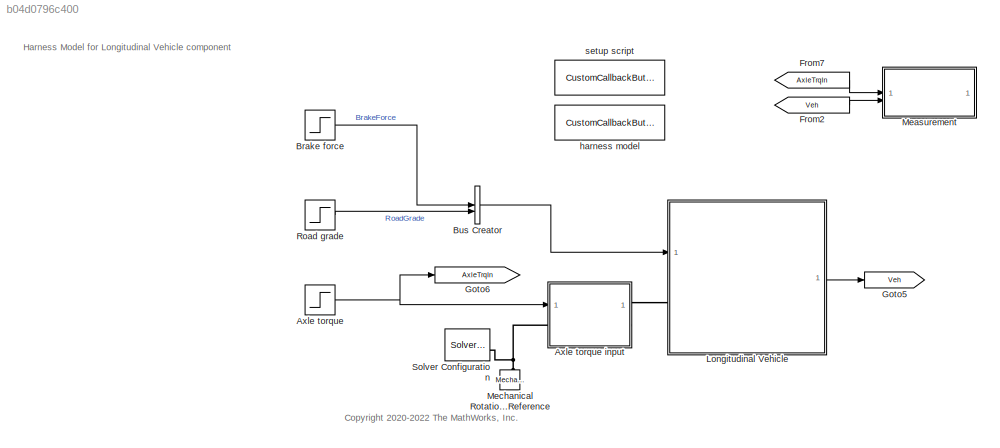
MODEL mdl_b04d0796c400
KIND model
CONFIG AbsTol = 1e-3
CONFIG EnableMultiTasking = off
CONFIG FixedStep = auto
CONFIG MaxStep = auto
CONFIG MinStep = auto
CONFIG PreLoadFcn = Vehicle1D_Component_harness_setup\n
CONFIG RelTol = 1e-3
CONFIG SampleTimeConstraint = Unconstrained
CONFIG SolverName = daessc
CONFIG StartTime = 0.0
CONFIG StopTime = 100
BLOCK [Step] Axle torque
  After = 0
  AttributesFormatString = Step time: %<Time>\nInitial: %<Before>\nFinal: %<After>
  Before = 500
  NameLocation = left
  SampleTime = 0
  Time = 20
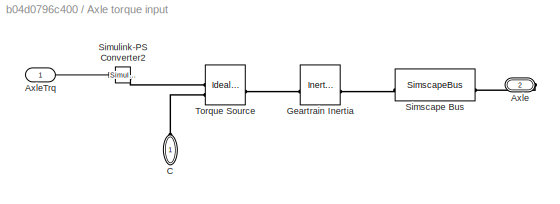
BLOCK [SubSystem] Axle torque input
BLOCK [PMIOPort] Axle torque input/Axle
  Port = 2
  Side = Right
BLOCK [Inport] Axle torque input/AxleTrq
BLOCK [PMIOPort] Axle torque input/C
  NameLocation = left
  Side = Left
BLOCK [Reference] Axle torque input/Geartrain Inertia  REF=fl_lib/Mechanical/Rotational Elements/Inertia
  AttributesFormatString = %<inertia>\n%<inertia_unit>
  NameLocation = top
  SourceBlock = fl_lib/Mechanical/Rotational Elements/Inertia
  SourceType = Inertia
BLOCK [SimscapeBus] Axle torque input/Simscape Bus
  AttributesFormatString = %<ConnectionType>
  ConnectionType = Bus: Bus_Rotational
  HierarchyStrings = AngSpd
BLOCK [Reference] Axle torque input/Simulink-PS Converter2  REF=nesl_utility/Simulink-PS
Converter
  AttributesFormatString = %<Unit>
  SourceBlock = nesl_utility/Simulink-PS\nConverter
  SourceType = Simulink-PS\nConverter
BLOCK [Reference] Axle torque input/Torque Source  REF=fl_lib/Mechanical/Mechanical Sources/Ideal Torque Source
  NameLocation = top
  SourceBlock = fl_lib/Mechanical/Mechanical Sources/Ideal Torque Source
  SourceType = Ideal Torque Source
BLOCK [Step] Brake force
  After = 500
  AttributesFormatString = Step time: %<Time>\nInitial: %<Before>\nFinal: %<After>
  NameLocation = left
  SampleTime = 0
  Time = 70
BLOCK [BusCreator] Bus Creator
  DisplayOption = bar
  InheritFromInputs = on
  Inputs = 2
BLOCK [From] From2
  GotoTag = Veh
  NameLocation = left
BLOCK [From] From7
  GotoTag = AxleTrqIn
  NameLocation = left
BLOCK [Goto] Goto5
  GotoTag = Veh
BLOCK [Goto] Goto6
  GotoTag = AxleTrqIn
  NameLocation = top
BLOCK [SubSystem] Longitudinal Vehicle
  ReferencedSubsystem = Vehicle1D_refsub_Basic
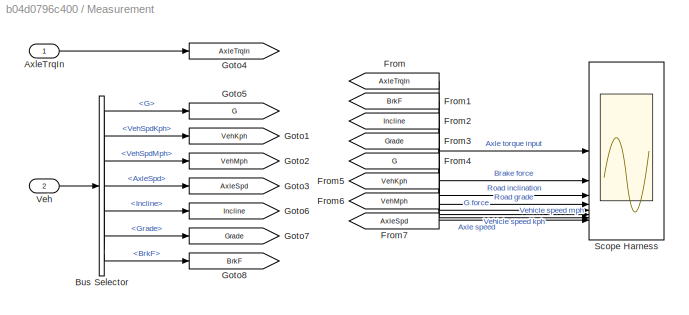
BLOCK [SubSystem] Measurement
BLOCK [Inport] Measurement/AxleTrqIn
BLOCK [BusSelector] Measurement/Bus Selector
  OutputSignals = G,VehSpdKph,VehSpdMph,AxleSpd,Incline,Grade,BrkF
BLOCK [From] Measurement/From
  GotoTag = AxleTrqIn
BLOCK [From] Measurement/From1
  GotoTag = BrkF
BLOCK [From] Measurement/From2
  GotoTag = Incline
BLOCK [From] Measurement/From3
  GotoTag = Grade
BLOCK [From] Measurement/From4
  GotoTag = G
BLOCK [From] Measurement/From5
  GotoTag = VehKph
BLOCK [From] Measurement/From6
  GotoTag = VehMph
BLOCK [From] Measurement/From7
  GotoTag = AxleSpd
BLOCK [Goto] Measurement/Goto1
  GotoTag = VehKph
  NameLocation = right
BLOCK [Goto] Measurement/Goto2
  GotoTag = VehMph
  NameLocation = right
BLOCK [Goto] Measurement/Goto3
  GotoTag = AxleSpd
  NameLocation = right
BLOCK [Goto] Measurement/Goto4
  GotoTag = AxleTrqIn
  NameLocation = right
BLOCK [Goto] Measurement/Goto5
  GotoTag = G
  NameLocation = right
BLOCK [Goto] Measurement/Goto6
  GotoTag = Incline
  NameLocation = right
BLOCK [Goto] Measurement/Goto7
  GotoTag = Grade
  NameLocation = right
BLOCK [Goto] Measurement/Goto8
  GotoTag = BrkF
  NameLocation = right
BLOCK [Scope] Measurement/Scope Harness
  Floating = off
  NumInputPorts = 8
  ScopeSpecificationString = Simulink.scopes.TimeScopeBlockCfg('CurrentConfiguration', extmgr.ConfigurationSet(extmgr.Configuration('Core','General UI',true),extmgr.Configuration('Core','Source UI',true),extmgr.Configuration('Sources','WiredSimulink',true,'DataLoggingVariableName','ScopeData1'),extmgr.Configuration('Visuals','Time Domain',true,'SerializedDisplays',{struct('MinYLimReal','-62.5','MaxYLimReal','562.5','YLabelRea...<+6269ch>
BLOCK [Inport] Measurement/Veh
  Port = 2
BLOCK [Reference] Mechanical Rotational Reference  REF=fl_lib/Mechanical/Rotational Elements/Mechanical
Rotational Reference
  SourceBlock = fl_lib/Mechanical/Rotational Elements/Mechanical\nRotational Reference
  SourceType = Mechanical\nRotational Reference
BLOCK [Step] Road grade
  After = 0
  AttributesFormatString = Step time: %<Time>\nInitial: %<Before>\nFinal: %<After>
  Before = -5
  NameLocation = left
  SampleTime = 0
  Time = 50
BLOCK [Reference] Solver Configuration  REF=nesl_utility/Solver
Configuration
  AttributesFormatString = Local solver %<UseLocalSolver>
  NameLocation = left
  SourceBlock = nesl_utility/Solver\nConfiguration
  SourceType = Solver\nConfiguration
BLOCK [CustomCallbackButton] harness model
  Configuration = {"components":[{"name":"BackgroundImageComponent","settings":{"image":{"size":[0,0],"src":"default","srcOrientation":"Right"},"position":[0,0,1,1]}},{"name":"ButtonStateComponent","settings":{"buttonType":"momentary","clickFcn":"Vehicle1D_Component_resetHarnessModel\n","onValue":1,"position":[0,0,1,1],"pressDelay":"500","pressFcn":"","repeatInterval":"0","states":[{"horizontalAlignment":"center","...<+1762ch>
  CustomBackgroundColor = {"color":[0.9568627451,0.9568627451,0.9568627451],"show":true}
  NameLocation = right
BLOCK [CustomCallbackButton] setup script
  Configuration = {"components":[{"name":"BackgroundImageComponent","settings":{"image":{"size":[0,0],"src":"default","srcOrientation":"Right"},"position":[0,0,1,1]}},{"name":"ButtonStateComponent","settings":{"buttonType":"momentary","clickFcn":"edit Vehicle1D_Component_harness_setup\n","onValue":1,"position":[0,0,1,1],"pressDelay":"500","pressFcn":"","repeatInterval":"0","states":[{"horizontalAlignment":"center",...<+1759ch>
  CustomBackgroundColor = {"color":[0.9568627451,0.9568627451,0.9568627451],"show":true}
  NameLocation = right
ANNOTATION (root): <copyright redacted>
ANNOTATION (root): Harness Model for Longitudinal Vehicle component
LINE Axle torque input/AxleTrq:1 -> Axle torque input/Simulink-PS Converter2:1
NET Axle torque:1 -> Axle torque input:1, Goto6:1
LINE Brake force:1 -> Bus Creator:1
LINE Bus Creator:1 -> Longitudinal Vehicle:1
LINE From2:1 -> Measurement:2
LINE From7:1 -> Measurement:1
LINE Longitudinal Vehicle:1 -> Goto5:1
LINE Measurement/AxleTrqIn:1 -> Measurement/Goto4:1
LINE Measurement/Bus Selector:1 -> Measurement/Goto5:1
LINE Measurement/Bus Selector:2 -> Measurement/Goto1:1
LINE Measurement/Bus Selector:3 -> Measurement/Goto2:1
LINE Measurement/Bus Selector:4 -> Measurement/Goto3:1
LINE Measurement/Bus Selector:5 -> Measurement/Goto6:1
LINE Measurement/Bus Selector:6 -> Measurement/Goto7:1
LINE Measurement/Bus Selector:7 -> Measurement/Goto8:1
LINE Measurement/From1:1 -> Measurement/Scope Harness:2
LINE Measurement/From2:1 -> Measurement/Scope Harness:3
LINE Measurement/From3:1 -> Measurement/Scope Harness:4
LINE Measurement/From4:1 -> Measurement/Scope Harness:5
LINE Measurement/From5:1 -> Measurement/Scope Harness:6
LINE Measurement/From6:1 -> Measurement/Scope Harness:7
LINE Measurement/From7:1 -> Measurement/Scope Harness:8
LINE Measurement/From:1 -> Measurement/Scope Harness:1
LINE Measurement/Veh:1 -> Measurement/Bus Selector:1
LINE Road grade:1 -> Bus Creator:2
PLINE Axle torque input/Axle:RConn1 -- Axle torque input/Simscape Bus:RConn1
PLINE Axle torque input/C:RConn1 -- Axle torque input/Torque Source:RConn2
PLINE Axle torque input/Geartrain Inertia:LConn1 -- Axle torque input/Simscape Bus:LConn1
PLINE Axle torque input/Geartrain Inertia:RConn1 -- Axle torque input/Torque Source:LConn1
PLINE Axle torque input/Simulink-PS Converter2:RConn1 -- Axle torque input/Torque Source:RConn1
PNET net1: Axle torque input:LConn1 -- Mechanical Rotational Reference:LConn1 -- Solver Configuration:RConn1
PLINE Axle torque input:RConn1 -- Longitudinal Vehicle:LConn1
note: NET lines group one-source signal fan-out (src -> all destinations, sorted); 1:1 wires keep LINE; PNET lines group multi-terminal physical nets as a canonical sorted terminal list (undirected conserving connections); 2-terminal nets keep the pairwise PLINE form
